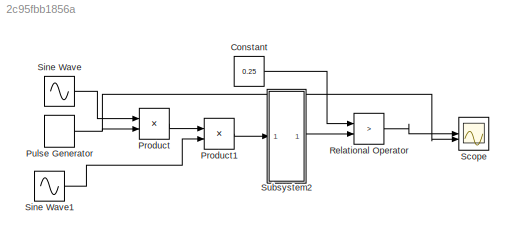
MODEL slx_2c95fbb1856a
KIND model
CONFIG AbsTol = auto
CONFIG EnableMultiTasking = off
CONFIG FixedStep = auto
CONFIG MaxStep = auto
CONFIG MinStep = auto
CONFIG RelTol = 1e-3
CONFIG SampleTimeConstraint = Unconstrained
CONFIG SolverName = VariableStepAuto
CONFIG StartTime = 0.0
CONFIG StopTime = 10.0
BLOCK [Constant] Constant
  Value = 0.25
BLOCK [Product] Product
BLOCK [Product] Product1
BLOCK [DiscretePulseGenerator] Pulse Generator
  Period = 1
  PulseType = Time based
  PulseWidth = 50
BLOCK [RelationalOperator] Relational Operator
  InputSameDT = off
  Operator = >
  OutDataTypeStr = boolean
  RndMeth = Simplest
BLOCK [Scope] Scope
  Floating = off
  NumInputPorts = 2
  ScopeSpecificationString = Simulink.scopes.TimeScopeBlockCfg('CurrentConfiguration', extmgr.ConfigurationSet(extmgr.Configuration('Core','General UI',true),extmgr.Configuration('Core','Source UI',true),extmgr.Configuration('Sources','WiredSimulink',true),extmgr.Configuration('Visuals','Time Domain',true,'SerializedDisplays',{struct('MinYLimReal','-0.125','MaxYLimReal','1.125','YLabelReal','','MinYLimMag','0.00000','MaxYLimM...<+2007ch>
BLOCK [Sin] Sine Wave
  Frequency = 100
  SampleTime = 0
BLOCK [Sin] Sine Wave1
  Frequency = 100
  SampleTime = 0
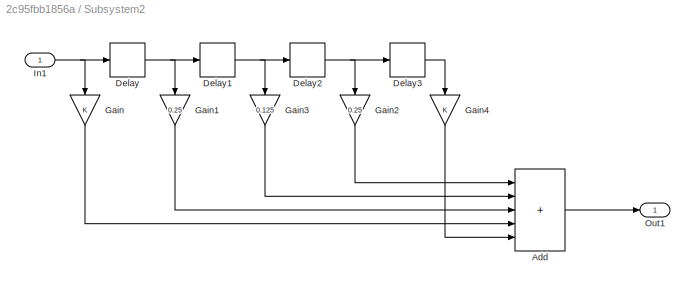
BLOCK [SubSystem] Subsystem2
BLOCK [Sum] Subsystem2/Add
  IconShape = rectangular
  Inputs = +++++
BLOCK [Delay] Subsystem2/Delay
  DelayLength = 1
  InputPortMap = u0
BLOCK [Delay] Subsystem2/Delay1
  DelayLength = 1
  InputPortMap = u0
BLOCK [Delay] Subsystem2/Delay2
  DelayLength = 1
  InputPortMap = u0
BLOCK [Delay] Subsystem2/Delay3
  DelayLength = 1
  InputPortMap = u0
BLOCK [Gain] Subsystem2/Gain
  NameLocation = left
BLOCK [Gain] Subsystem2/Gain1
  Gain = 0.25
  NameLocation = left
BLOCK [Gain] Subsystem2/Gain2
  Gain = 0.25
  NameLocation = left
BLOCK [Gain] Subsystem2/Gain3
  Gain = 0.125
  NameLocation = left
BLOCK [Gain] Subsystem2/Gain4
  NameLocation = left
BLOCK [Inport] Subsystem2/In1
BLOCK [Outport] Subsystem2/Out1
LINE Constant:1 -> Relational Operator:1
LINE Product1:1 -> Subsystem2:1
LINE Product:1 -> Product1:1
NET Pulse Generator:1 -> Product:2, Scope:2
LINE Relational Operator:1 -> Scope:1
LINE Sine Wave1:1 -> Product1:2
LINE Sine Wave:1 -> Product:1
LINE Subsystem2/Add:1 -> Subsystem2/Out1:1
NET Subsystem2/Delay1:1 -> Subsystem2/Delay2:1, Subsystem2/Gain3:1
NET Subsystem2/Delay2:1 -> Subsystem2/Delay3:1, Subsystem2/Gain2:1
LINE Subsystem2/Delay3:1 -> Subsystem2/Gain4:1
NET Subsystem2/Delay:1 -> Subsystem2/Delay1:1, Subsystem2/Gain1:1
LINE Subsystem2/Gain1:1 -> Subsystem2/Add:3
LINE Subsystem2/Gain2:1 -> Subsystem2/Add:1
LINE Subsystem2/Gain3:1 -> Subsystem2/Add:2
LINE Subsystem2/Gain4:1 -> Subsystem2/Add:5
LINE Subsystem2/Gain:1 -> Subsystem2/Add:4
NET Subsystem2/In1:1 -> Subsystem2/Delay:1, Subsystem2/Gain:1
LINE Subsystem2:1 -> Relational Operator:2
note: NET lines group one-source signal fan-out (src -> all destinations, sorted); 1:1 wires keep LINE
